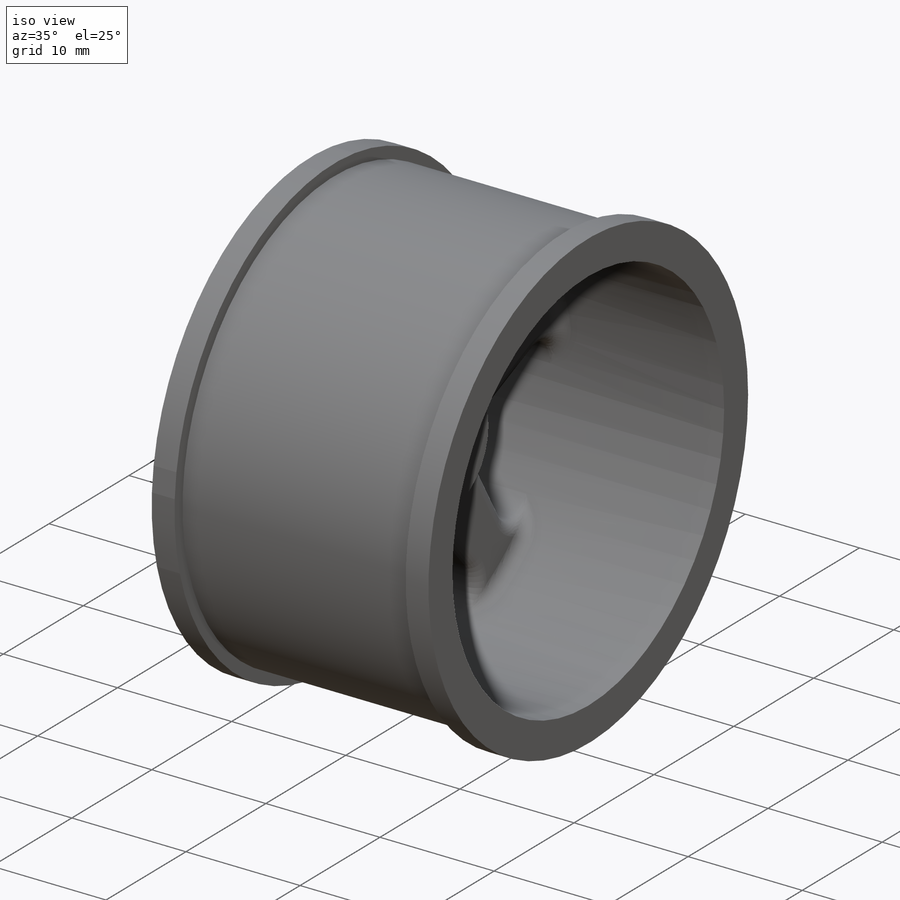
[diagram: iso view]
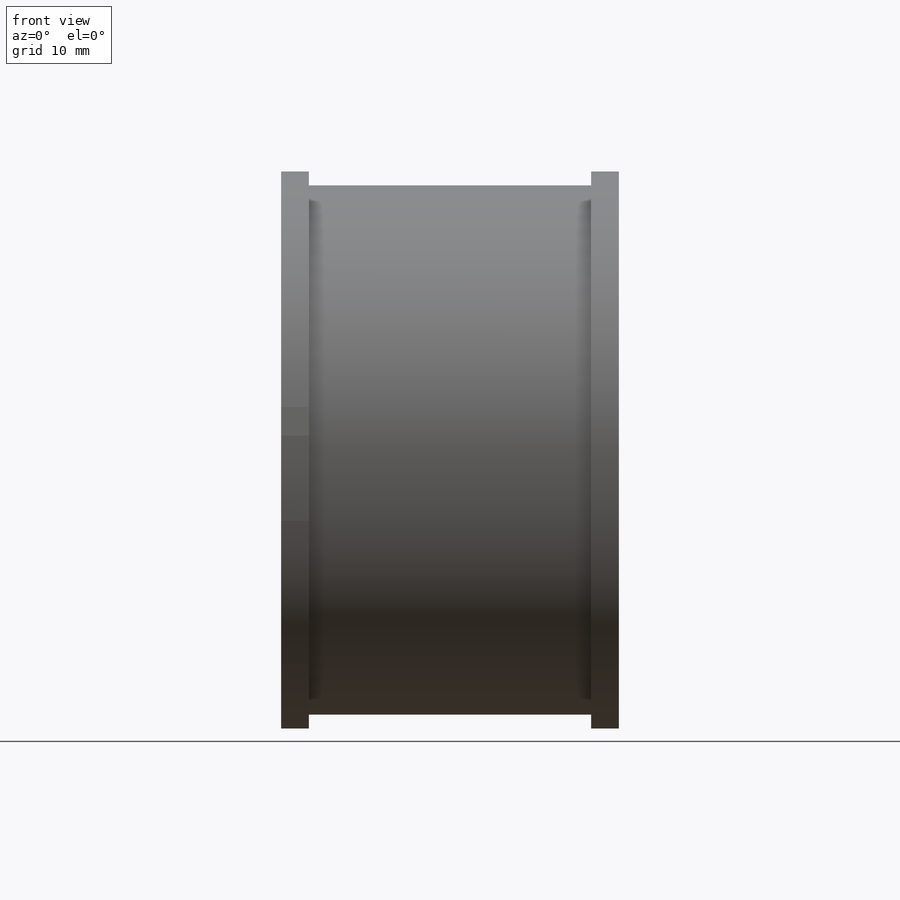
[diagram: front view]
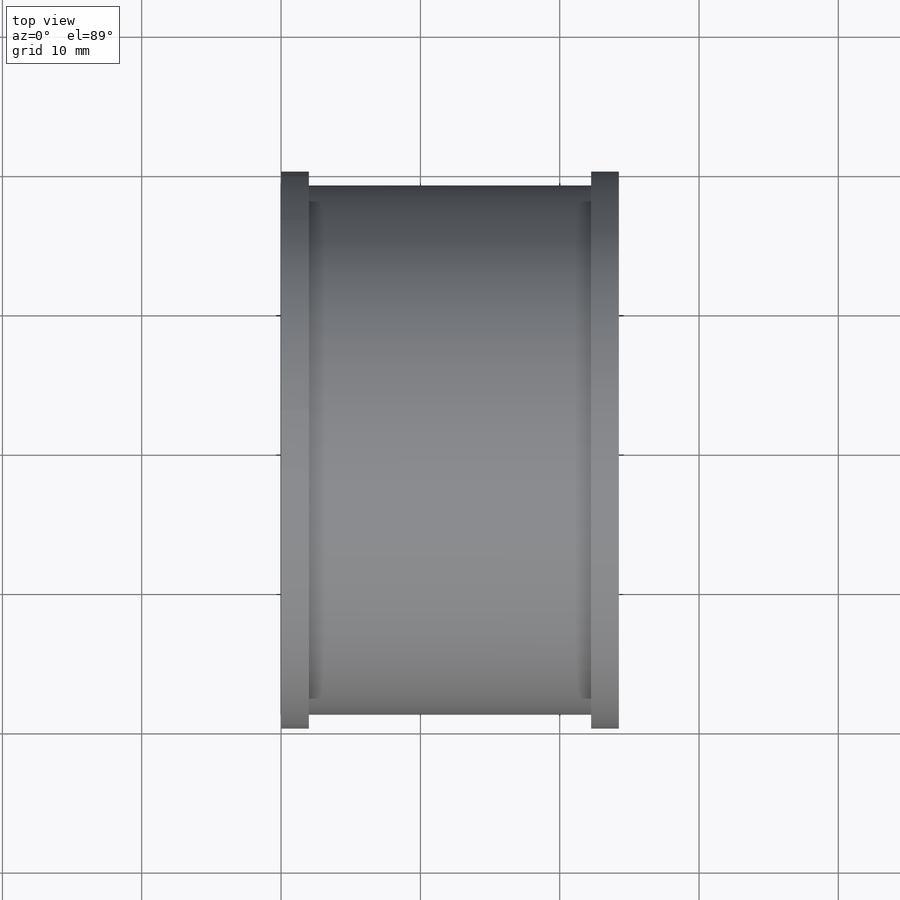
[diagram: top view]
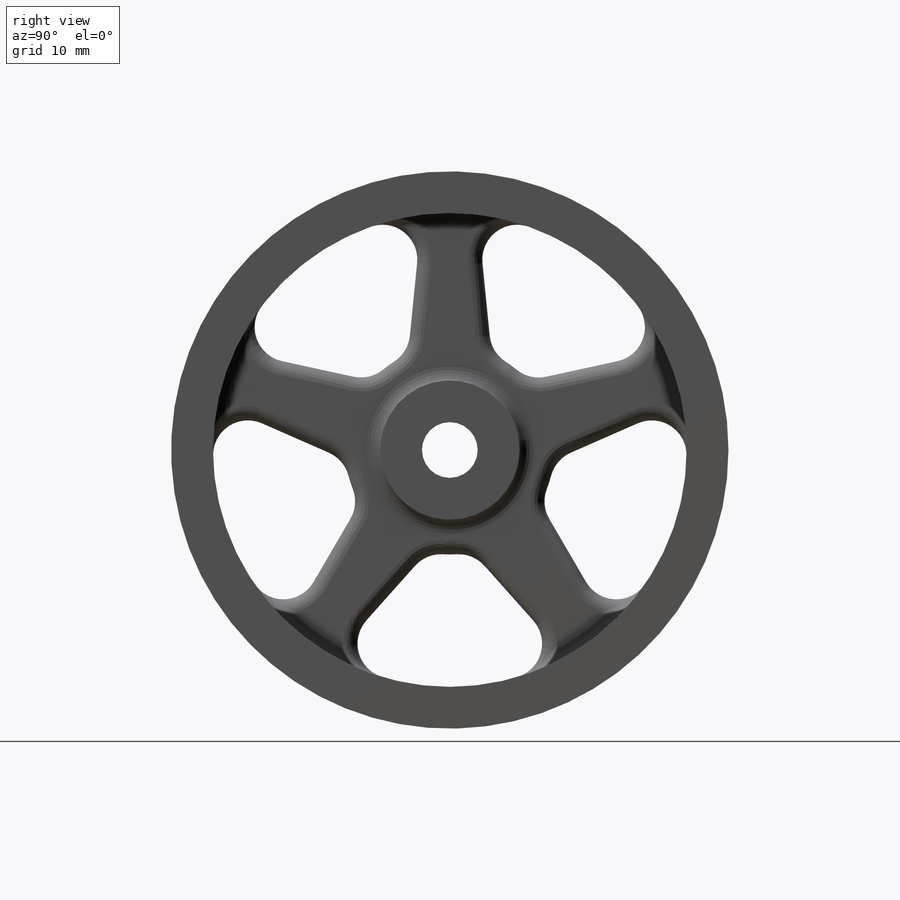
[diagram: right view]
SOLIDWORKS PART (.sldprt)
format: sldprt  version: not decoded by parser v0  size: 647,168 bytes
history: native  units: mm
features: sketch x3, cut_extrude x2, fillet x2, material x1, revolve x1 (+12 scaffold rows collapsed)
feature tree (21):
  scaffold x12  (default folders/planes/origin — collapsed)
  material  "Delrin 2700 NC010, Low Viscosity Acetal Copolymer (SS)"
  sketch  "Sketch1"  dims[c1.D1=6.5mm c1.D2=9.5mm c1.D3=4.75mm c1.D4=3.5mm c1.D5=2.0mm c1.D6=1.0mm c1.D7=24.25mm c1.D8=20.0mm c1.D9=17.0mm c1.D10=14.0mm c2.D1=20.0mm c2.D2=17.0mm c2.D3=10.0mm c2.D4=12.0mm c2.D8=5.0mm]
  revolve  "Revolve1"  Angle=360deg
  sketch  "Sketch2"  dims[D1=4.0mm]
  cut_extrude  "Cut-Extrude1"  [1 undecoded]
  sketch  "Sketch3"  dims[c1.D1=15.0mm c1.D2=2.0mm c1.D3=~2.003481mm c2.D2=2.0mm c2.D3=17.0mm c3.D3=~5.055663deg c4.D3=2.0mm c4.D4=3.0mm c4.D5=5.0]
  cut_extrude  "Cut-Extrude2"  [1 undecoded]
  fillet  "Fillet1"  Radius=2.5mm
  fillet  "Fillet2"  Radius=1mm
decode coverage: 6 of 8 modeling features carry decoded parameters
note: ~ marks probable driven/reference dimensions
note: 2 parameter values undecoded
note: suppression state not decoded; provenance and decode notes live in map.json
